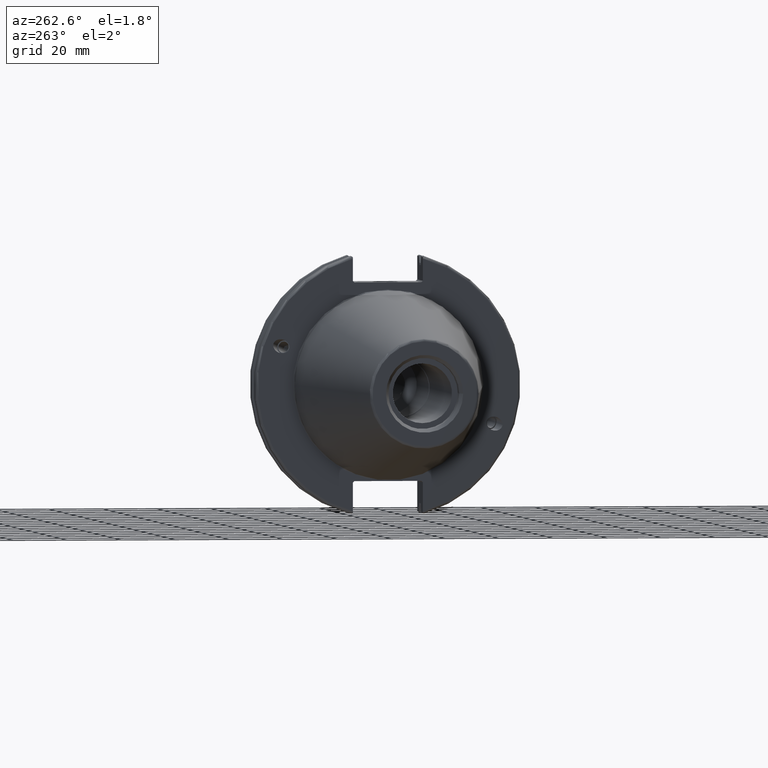
[diagram: clean part render]
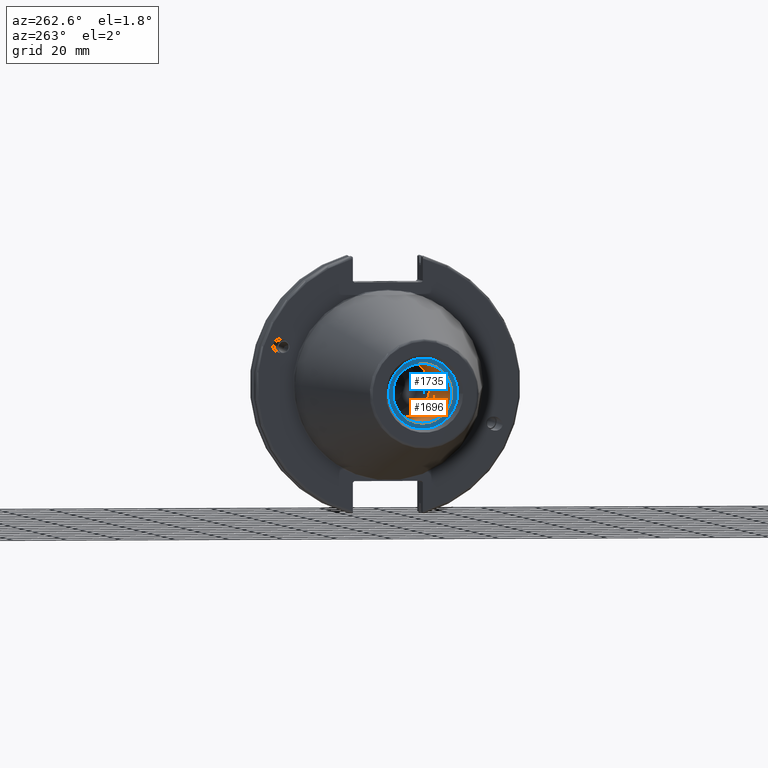
[diagram: same view with the hole feature highlighted: cylindrical wall and planar end face, labeled with their STEP entity ids]
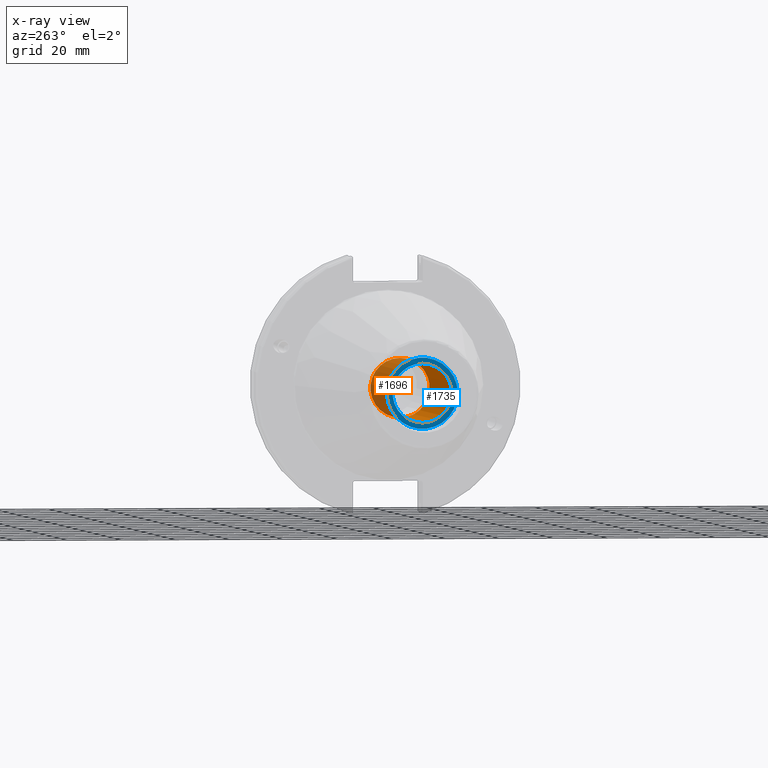
[diagram: x-ray of the same camera — body ghosted, the hole faces saturated]
A machine part, auxiliary view. The highlighted faces form one hole feature of diameter 21.971 mm: the cylindrical wall (entity #1696, orange) and its adjacent planar end face (entity #1735, blue) — they share a circular edge in the B-rep.
The next image is the same camera in x-ray (body ghosted, the hole faces saturated) — the bore reads through the body.
Wall:
#152=CIRCLE('',#1868,10.9855);
#153=CIRCLE('',#1870,10.9855);
#247=FACE_OUTER_BOUND('',#361,.T.);
#361=EDGE_LOOP('',(#1367,#1368,#1369,#1370));
#521=LINE('',#3299,#623);
#623=VECTOR('',#2212,10.9855);
#789=VERTEX_POINT('',#3293);
#790=VERTEX_POINT('',#3297);
#999=EDGE_CURVE('',#789,#789,#152,.T.);
#1001=EDGE_CURVE('',#790,#790,#153,.T.);
#1002=EDGE_CURVE('',#790,#789,#521,.T.);
#1367=ORIENTED_EDGE('',*,*,#1001,.F.);
#1368=ORIENTED_EDGE('',*,*,#1002,.T.);
#1369=ORIENTED_EDGE('',*,*,#999,.F.);
#1370=ORIENTED_EDGE('',*,*,#1002,.F.);
#1638=CYLINDRICAL_SURFACE('',#1869,10.9855);
#1696=ADVANCED_FACE('',(#247),#1638,.F.);
#1868=AXIS2_PLACEMENT_3D('',#3294,#2205,#2206);
#1869=AXIS2_PLACEMENT_3D('',#3296,#2208,#2209);
#1870=AXIS2_PLACEMENT_3D('',#3298,#2210,#2211);
#2205=DIRECTION('center_axis',(-1.,0.,0.));
#2206=DIRECTION('ref_axis',(0.,0.,1.));
#2208=DIRECTION('center_axis',(-1.,0.,0.));
#2209=DIRECTION('ref_axis',(0.,0.,1.));
#2210=DIRECTION('center_axis',(1.,0.,0.));
#2211=DIRECTION('ref_axis',(0.,0.,1.));
#2212=DIRECTION('',(1.,0.,0.));
#3293=CARTESIAN_POINT('',(-31.6,-1.34533574120333E-15,-10.9855));
#3294=CARTESIAN_POINT('Origin',(-31.6,0.,0.));
#3296=CARTESIAN_POINT('Origin',(-66.6,0.,0.));
#3297=CARTESIAN_POINT('',(-95.25,1.34533574120333E-15,-10.9855));
#3298=CARTESIAN_POINT('Origin',(-95.25,0.,0.));
#3299=CARTESIAN_POINT('',(-66.6,-1.34533574120333E-15,-10.9855));
End face:
#55=FACE_BOUND('',#406,.T.);
#90=PLANE('',#1933);
#153=CIRCLE('',#1870,10.9855);
#178=CIRCLE('',#1934,13.1);
#286=FACE_OUTER_BOUND('',#405,.T.);
#405=EDGE_LOOP('',(#1581));
#406=EDGE_LOOP('',(#1582));
#790=VERTEX_POINT('',#3297);
#845=VERTEX_POINT('',#3597);
#1001=EDGE_CURVE('',#790,#790,#153,.T.);
#1095=EDGE_CURVE('',#845,#845,#178,.T.);
#1581=ORIENTED_EDGE('',*,*,#1095,.F.);
#1582=ORIENTED_EDGE('',*,*,#1001,.T.);
#1735=ADVANCED_FACE('',(#286,#55),#90,.T.);
#1870=AXIS2_PLACEMENT_3D('',#3298,#2210,#2211);
#1933=AXIS2_PLACEMENT_3D('',#3596,#2381,#2382);
#1934=AXIS2_PLACEMENT_3D('',#3598,#2383,#2384);
#2210=DIRECTION('center_axis',(1.,0.,0.));
#2211=DIRECTION('ref_axis',(0.,0.,1.));
#2381=DIRECTION('center_axis',(-1.,0.,0.));
#2382=DIRECTION('ref_axis',(0.,0.,1.));
#2383=DIRECTION('center_axis',(1.,0.,0.));
#2384=DIRECTION('ref_axis',(0.,0.,-1.));
#3297=CARTESIAN_POINT('',(-95.25,1.34533574120333E-15,-10.9855));
#3298=CARTESIAN_POINT('Origin',(-95.25,0.,0.));
#3596=CARTESIAN_POINT('Origin',(-95.25,13.1,0.));
#3597=CARTESIAN_POINT('',(-95.25,-13.1,-1.60428730688303E-15));
#3598=CARTESIAN_POINT('Origin',(-95.25,0.,0.));